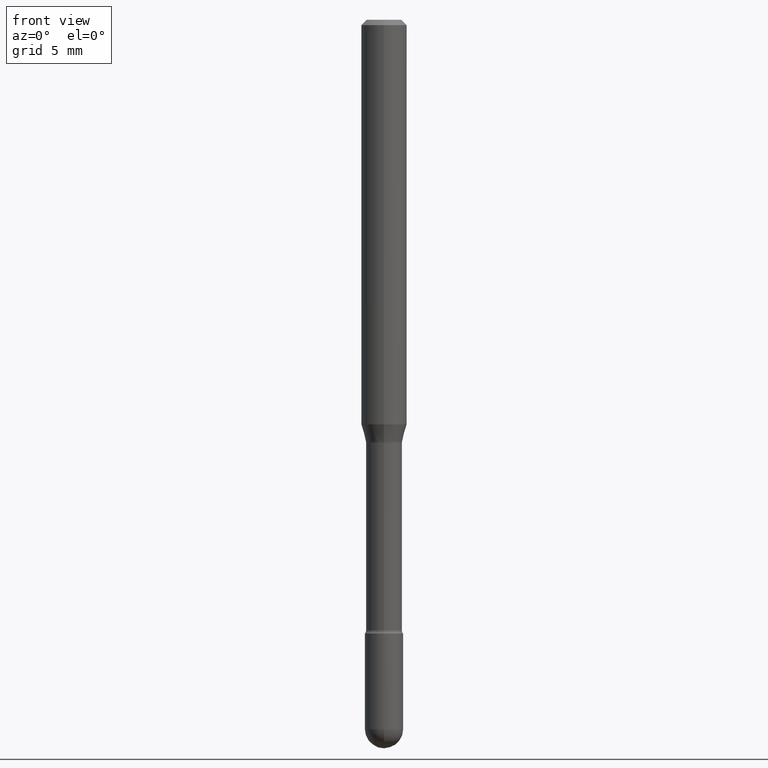
[diagram: clean part render]
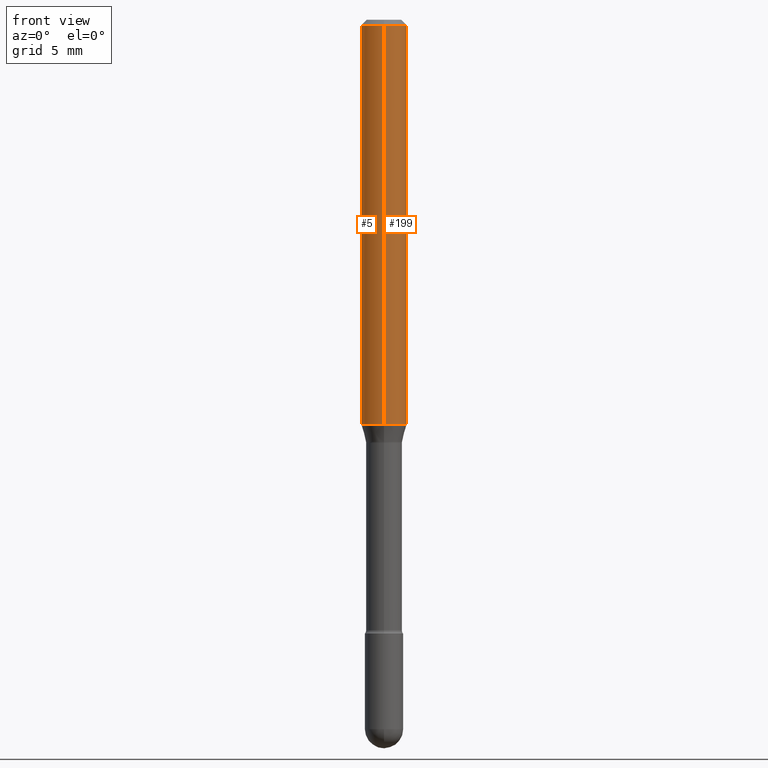
[diagram: same view with one multi-face feature highlighted, each face labeled with its STEP entity id]
A machine part, front view. The highlighted faces form ONE feature: a constant-radius fillet chain: 2 tangent blend faces with common blend radius 1.5875 mm. The faces share edges in the B-rep.
Their STEP definitions:
[1] entity #199 (Cylinder):
#21 = EDGE_LOOP ( 'NONE', ( #528, #421, #219, #232 ) ) ;
#23 = VERTEX_POINT ( 'NONE', #179 ) ;
#29 = EDGE_CURVE ( 'NONE', #202, #407, #350, .T. ) ;
#30 = DIRECTION ( 'NONE',  ( -2.445419017493962696E-29, 3.491552639082703097E-15, 1.000000000000000000 ) ) ;
#33 = VECTOR ( 'NONE', #169, 39.37007874015748143 ) ;
#76 = CARTESIAN_POINT ( 'NONE',  ( -4.364351673553645030E-16, -0.06250000000000388578, -1.110923531880468884 ) ) ;
#83 = CARTESIAN_POINT ( 'NONE',  ( 4.440892098500899305E-16, 0.06249999999999995143, -0.01500000000000030129 ) ) ;
#136 = CARTESIAN_POINT ( 'NONE',  ( -4.364351673553916201E-16, -0.06250000000000000000, 6.962954388339150068E-16 ) ) ;
#156 = CARTESIAN_POINT ( 'NONE',  ( 2.716673531842059463E-29, -3.878847989556329516E-15, -1.110923531880469106 ) ) ;
#157 = DIRECTION ( 'NONE',  ( -6.982962677686265922E-15, -1.000000000000000000, 4.370956789862821150E-15 ) ) ;
#169 = DIRECTION ( 'NONE',  ( -2.445419017493962696E-29, 3.491552639082703097E-15, 1.000000000000000000 ) ) ;
#174 = VECTOR ( 'NONE', #531, 39.37007874015748143 ) ;
#179 = CARTESIAN_POINT ( 'NONE',  ( -4.364351673553912750E-16, -0.06250000000000005551, -0.01499999999999986587 ) ) ;
#197 = FACE_OUTER_BOUND ( 'NONE', #21, .T. ) ;
#199 = ADVANCED_FACE ( 'NONE', ( #197 ), #239, .T. ) ;
#202 = VERTEX_POINT ( 'NONE', #451 ) ;
#219 = ORIENTED_EDGE ( 'NONE', *, *, #269, .F. ) ;
#232 = ORIENTED_EDGE ( 'NONE', *, *, #385, .F. ) ;
#239 = CYLINDRICAL_SURFACE ( 'NONE', #240, 0.06250000000000000000 ) ;
#240 = AXIS2_PLACEMENT_3D ( 'NONE', #279, #30, #334 ) ;
#269 = EDGE_CURVE ( 'NONE', #23, #407, #348, .T. ) ;
#274 = EDGE_CURVE ( 'NONE', #281, #202, #320, .T. ) ;
#279 = CARTESIAN_POINT ( 'NONE',  ( -1.169113584055446105E-44, 1.669184350826100908E-30, 4.780733988912460139E-16 ) ) ;
#281 = VERTEX_POINT ( 'NONE', #76 ) ;
#320 = CIRCLE ( 'NONE', #331, 0.06250000000000000000 ) ;
#331 = AXIS2_PLACEMENT_3D ( 'NONE', #156, #509, #157 ) ;
#334 = DIRECTION ( 'NONE',  ( -6.982962677686265922E-15, -1.000000000000000000, 3.491552639082702703E-15 ) ) ;
#348 = CIRCLE ( 'NONE', #425, 0.06250000000000000000 ) ;
#350 = LINE ( 'NONE', #439, #33 ) ;
#365 = DIRECTION ( 'NONE',  ( -2.445419017493962696E-29, 3.491552639082703097E-15, 1.000000000000000000 ) ) ;
#385 = EDGE_CURVE ( 'NONE', #281, #23, #475, .T. ) ;
#407 = VERTEX_POINT ( 'NONE', #83 ) ;
#414 = DIRECTION ( 'NONE',  ( -6.982962677686265922E-15, -1.000000000000000000, 3.483106191921935554E-15 ) ) ;
#421 = ORIENTED_EDGE ( 'NONE', *, *, #29, .T. ) ;
#425 = AXIS2_PLACEMENT_3D ( 'NONE', #553, #365, #414 ) ;
#439 = CARTESIAN_POINT ( 'NONE',  ( 4.440892098500625669E-16, 0.06250000000000000000, 2.598513589485771196E-16 ) ) ;
#451 = CARTESIAN_POINT ( 'NONE',  ( 4.440892098500896347E-16, 0.06249999999999610728, -1.110923531880469328 ) ) ;
#475 = LINE ( 'NONE', #136, #174 ) ;
#509 = DIRECTION ( 'NONE',  ( -2.445419017493962696E-29, 3.491552639082703097E-15, 1.000000000000000000 ) ) ;
#528 = ORIENTED_EDGE ( 'NONE', *, *, #274, .T. ) ;
#531 = DIRECTION ( 'NONE',  ( -2.445419017493962696E-29, 3.491552639082703097E-15, 1.000000000000000000 ) ) ;
#553 = CARTESIAN_POINT ( 'NONE',  ( 3.668128526240963907E-31, -5.237328958624083464E-17, -0.01500000000000008271 ) ) ;
[2] entity #5 (Cylinder):
#1 = CARTESIAN_POINT ( 'NONE',  ( -1.169113584055446105E-44, 1.669184350826100908E-30, 4.780733988912460139E-16 ) ) ;
#5 = ADVANCED_FACE ( 'NONE', ( #303 ), #424, .T. ) ;
#23 = VERTEX_POINT ( 'NONE', #179 ) ;
#29 = EDGE_CURVE ( 'NONE', #202, #407, #350, .T. ) ;
#33 = VECTOR ( 'NONE', #169, 39.37007874015748143 ) ;
#39 = DIRECTION ( 'NONE',  ( -6.982962677686265922E-15, -1.000000000000000000, 3.491552639082702703E-15 ) ) ;
#49 = CIRCLE ( 'NONE', #313, 0.06250000000000000000 ) ;
#73 = DIRECTION ( 'NONE',  ( -2.445419017493962696E-29, 3.491552639082703097E-15, 1.000000000000000000 ) ) ;
#76 = CARTESIAN_POINT ( 'NONE',  ( -4.364351673553645030E-16, -0.06250000000000388578, -1.110923531880468884 ) ) ;
#78 = CARTESIAN_POINT ( 'NONE',  ( 2.716673531842059463E-29, -3.878847989556329516E-15, -1.110923531880469106 ) ) ;
#83 = CARTESIAN_POINT ( 'NONE',  ( 4.440892098500899305E-16, 0.06249999999999995143, -0.01500000000000030129 ) ) ;
#136 = CARTESIAN_POINT ( 'NONE',  ( -4.364351673553916201E-16, -0.06250000000000000000, 6.962954388339150068E-16 ) ) ;
#146 = ORIENTED_EDGE ( 'NONE', *, *, #385, .T. ) ;
#169 = DIRECTION ( 'NONE',  ( -2.445419017493962696E-29, 3.491552639082703097E-15, 1.000000000000000000 ) ) ;
#174 = VECTOR ( 'NONE', #531, 39.37007874015748143 ) ;
#179 = CARTESIAN_POINT ( 'NONE',  ( -4.364351673553912750E-16, -0.06250000000000005551, -0.01499999999999986587 ) ) ;
#202 = VERTEX_POINT ( 'NONE', #451 ) ;
#211 = DIRECTION ( 'NONE',  ( -2.445419017493962696E-29, 3.491552639082703097E-15, 1.000000000000000000 ) ) ;
#235 = ORIENTED_EDGE ( 'NONE', *, *, #543, .F. ) ;
#244 = DIRECTION ( 'NONE',  ( -6.982962677686265922E-15, -1.000000000000000000, 4.370956789862821150E-15 ) ) ;
#272 = CARTESIAN_POINT ( 'NONE',  ( 3.668128526240963907E-31, -5.237328958624083464E-17, -0.01500000000000008271 ) ) ;
#278 = ORIENTED_EDGE ( 'NONE', *, *, #344, .T. ) ;
#281 = VERTEX_POINT ( 'NONE', #76 ) ;
#300 = ORIENTED_EDGE ( 'NONE', *, *, #29, .F. ) ;
#301 = EDGE_LOOP ( 'NONE', ( #300, #278, #146, #235 ) ) ;
#303 = FACE_OUTER_BOUND ( 'NONE', #301, .T. ) ;
#307 = CIRCLE ( 'NONE', #372, 0.06250000000000000000 ) ;
#313 = AXIS2_PLACEMENT_3D ( 'NONE', #272, #491, #534 ) ;
#338 = AXIS2_PLACEMENT_3D ( 'NONE', #1, #211, #39 ) ;
#344 = EDGE_CURVE ( 'NONE', #202, #281, #307, .T. ) ;
#350 = LINE ( 'NONE', #439, #33 ) ;
#372 = AXIS2_PLACEMENT_3D ( 'NONE', #78, #73, #244 ) ;
#385 = EDGE_CURVE ( 'NONE', #281, #23, #475, .T. ) ;
#407 = VERTEX_POINT ( 'NONE', #83 ) ;
#424 = CYLINDRICAL_SURFACE ( 'NONE', #338, 0.06250000000000000000 ) ;
#439 = CARTESIAN_POINT ( 'NONE',  ( 4.440892098500625669E-16, 0.06250000000000000000, 2.598513589485771196E-16 ) ) ;
#451 = CARTESIAN_POINT ( 'NONE',  ( 4.440892098500896347E-16, 0.06249999999999610728, -1.110923531880469328 ) ) ;
#475 = LINE ( 'NONE', #136, #174 ) ;
#491 = DIRECTION ( 'NONE',  ( -2.445419017493962696E-29, 3.491552639082703097E-15, 1.000000000000000000 ) ) ;
#531 = DIRECTION ( 'NONE',  ( -2.445419017493962696E-29, 3.491552639082703097E-15, 1.000000000000000000 ) ) ;
#534 = DIRECTION ( 'NONE',  ( -6.982962677686265922E-15, -1.000000000000000000, 3.483106191921935554E-15 ) ) ;
#543 = EDGE_CURVE ( 'NONE', #407, #23, #49, .T. ) ;